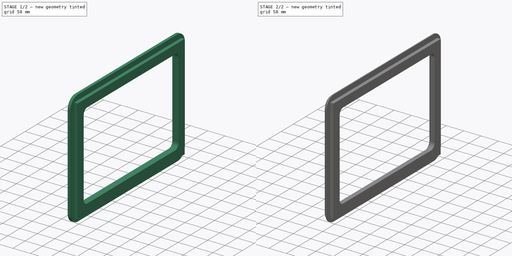
[diagram: build sequence overview — one tinted view per stage of 2, left to right]
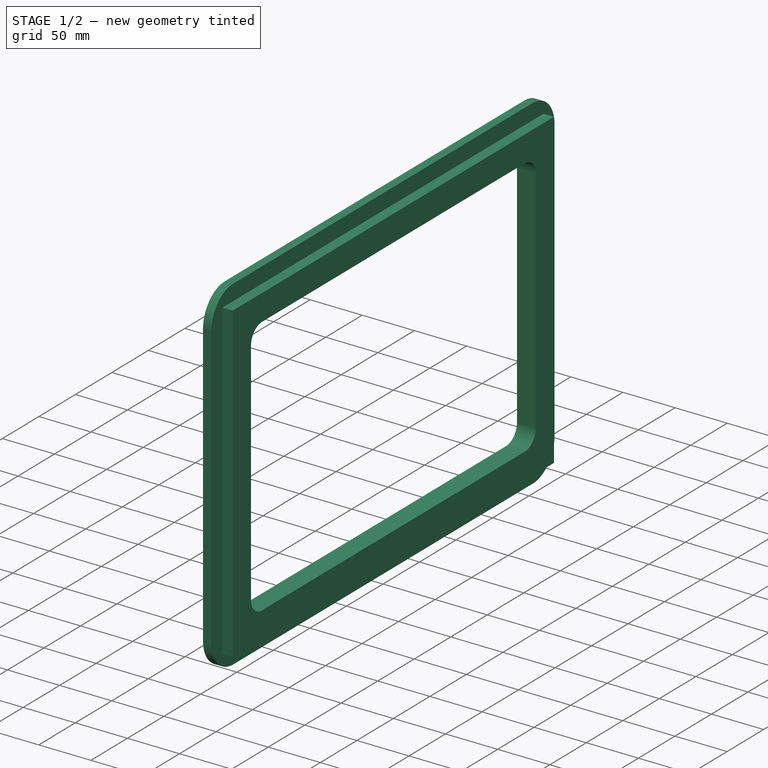
[diagram: stage 1 of 2 — iso view after this stage's code; geometry added in this stage tinted green]
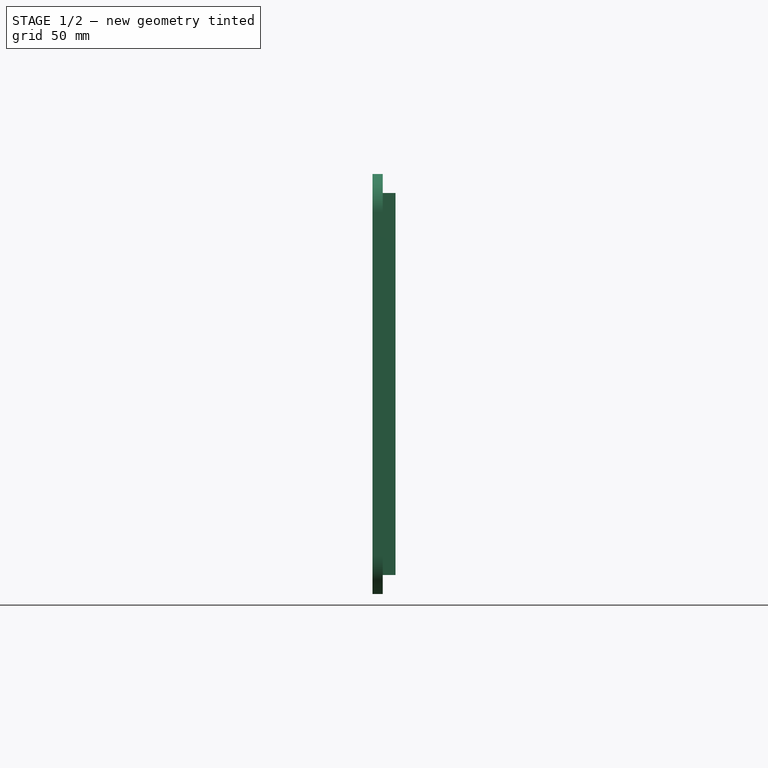
[diagram: stage 1 of 2 — front view after this stage's code; geometry added in this stage tinted green]
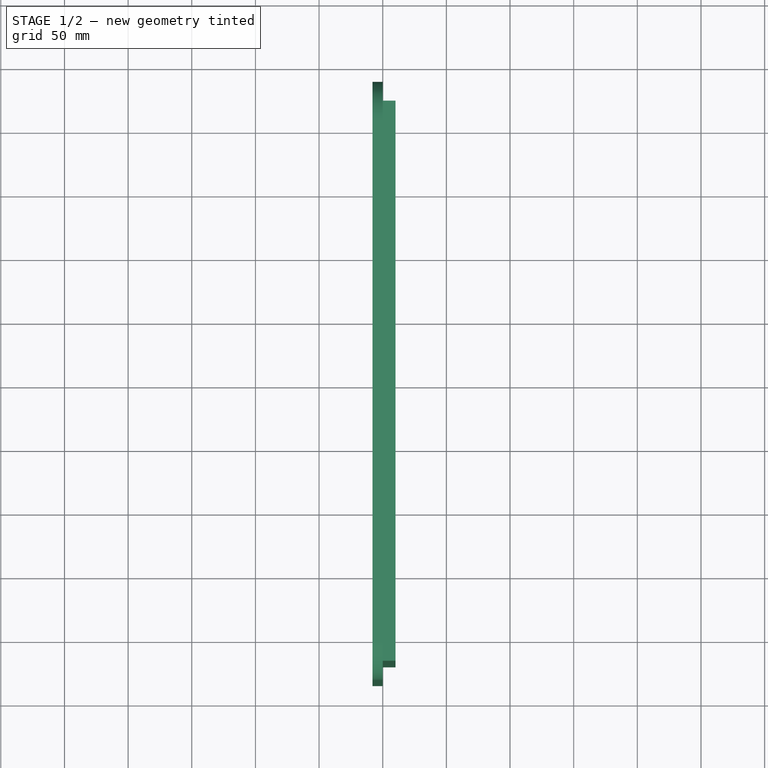
[diagram: stage 1 of 2 — top view after this stage's code; geometry added in this stage tinted green]
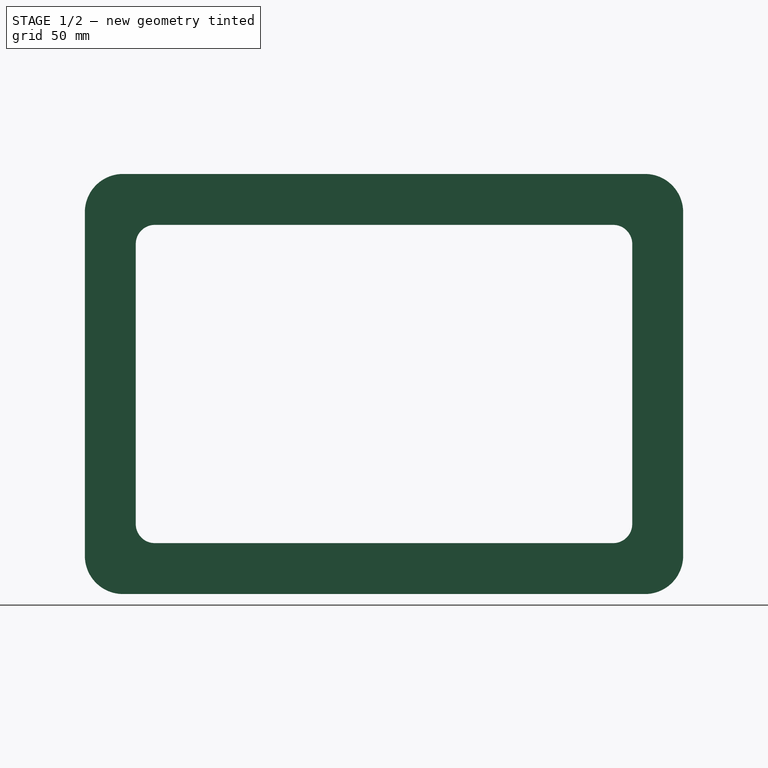
[diagram: stage 1 of 2 — right view after this stage's code; geometry added in this stage tinted green]
FCSTD DOCUMENT  (FreeCAD 0.20R29603 (Git))
Label: FensterRahmenInnen_440x300
License: All rights reserved
LicenseURL: http://en.wikipedia.org/wiki/All_rights_reserved
objects: Sketcher::SketchObject×2, PartDesign::Pad×2, PartDesign::Chamfer×1, PartDesign::Body×1
note: 9 computed .brp shape members not serialized (recipe doc carries the construction recipe); baked Part::Feature solids carry a one-line shape summary decoded from their .brp

FEATURE [Sketcher::SketchObject] Sketch
  FullyConstrained = true
  MapMode = 5
  Placement = pos=(0,0,0) rot=(0.57735,0.57735,0.57735;2.0944rad)
  Support = -> [YZ_Plane]
  sketch-geometry (18):
    g0: LineSegment StartX=-220 StartY=150 StartZ=0 EndX=-220 EndY=-150 EndZ=0
    g1: LineSegment StartX=-220 StartY=-150 StartZ=0 EndX=220 EndY=-150 EndZ=0
    g2: LineSegment StartX=220 StartY=-150 StartZ=0 EndX=220 EndY=150 EndZ=0
    g3: LineSegment StartX=220 StartY=150 StartZ=0 EndX=-220 EndY=150 EndZ=0
    g4: GeomPoint X=0 Y=0 Z=0
    g5: LineSegment StartX=-195 StartY=110 StartZ=0 EndX=-195 EndY=-110 EndZ=0
    g6: LineSegment StartX=-180 StartY=-125 StartZ=0 EndX=180 EndY=-125 EndZ=0
    g7: LineSegment StartX=195 StartY=-110 StartZ=0 EndX=195 EndY=110 EndZ=0
    g8: LineSegment StartX=180 StartY=125 StartZ=0 EndX=-180 EndY=125 EndZ=0
    g9: GeomPoint X=0 Y=0 Z=0
    g10: ArcOfCircle CenterX=180 CenterY=-110 CenterZ=0 NormalX=0 NormalY=0 NormalZ=1 AngleXU=0 Radius=15 StartAngle=4.71239 EndAngle=6.28319
    g11: GeomPoint X=195 Y=-125 Z=0
    g12: ArcOfCircle CenterX=180 CenterY=110 CenterZ=0 NormalX=0 NormalY=0 NormalZ=1 AngleXU=0 Radius=15 StartAngle=3.17e-14 EndAngle=1.5708
    g13: GeomPoint X=195 Y=125 Z=0
    g14: ArcOfCircle CenterX=-180 CenterY=110 CenterZ=0 NormalX=0 NormalY=0 NormalZ=1 AngleXU=0 Radius=15 StartAngle=1.5708 EndAngle=3.14159
    g15: GeomPoint X=-195 Y=125 Z=0
    g16: ArcOfCircle CenterX=-180 CenterY=-110 CenterZ=0 NormalX=0 NormalY=0 NormalZ=1 AngleXU=0 Radius=15 StartAngle=3.14159 EndAngle=4.71239
    g17: GeomPoint X=-195 Y=-125 Z=0
  constraints (40):
    c: Coincident(g0,g1)
    c: Coincident(g1,g2)
    c: Coincident(g2,g3)
    c: Coincident(g3,g0)
    c: Horizontal(g1)
    c: Horizontal(g3)
    c: Vertical(g0)
    c: Vertical(g2)
    c: Symmetric(g1,g0,g4)
    c: Coincident(g4,g-1)
    c: Distance(g3) = 440
    c: Distance(g0) = 300
    c: Horizontal(g6)
    c: Horizontal(g8)
    c: Vertical(g5)
    c: Vertical(g7)
    c: Symmetric(g11,g15,g9)
    c: Coincident(g9,g4)
    c: PointOnObject(g11,g6)
    c: PointOnObject(g11,g7)
    c: Tangent(g6,g10) = -1.5708
    c: Tangent(g7,g10) = -1.5708
    c: PointOnObject(g13,g7)
    c: PointOnObject(g13,g8)
    c: Tangent(g7,g12) = -1.5708
    c: Tangent(g8,g12) = -1.5708
    c: PointOnObject(g15,g5)
    c: PointOnObject(g15,g8)
    c: Tangent(g5,g14) = -1.5708
    c: Tangent(g8,g14) = -1.5708
    c: PointOnObject(g17,g5)
    c: PointOnObject(g17,g6)
    c: Tangent(g5,g16) = -1.5708
    c: Tangent(g6,g16) = -1.5708
    c: Equal(g12,g14)
    c: Equal(g14,g16)
    c: Equal(g16,g10)
    c: Radius(g12) = 15
    c: Distance(g7,g2) = 25
    c: Distance(g6,g1) = 25
FEATURE [PartDesign::Pad] Pad
  Direction = (1,-2e-16,3e-16)
  Length = 10
  Length2 = 10
  Placement = pos=(0,0,0) rot=(0.57735,0.57735,0.57735;2.0944rad)
  Profile = -> Sketch
  ReferenceAxis = -> Sketch [N_Axis]
  Type = 0
FEATURE [Sketcher::SketchObject] Sketch001
  ExternalGeometry = -> [Pad]
  FullyConstrained = true
  MapMode = 5
  Placement = pos=(0,0,0) rot=(0.57735,0.57735,-0.57735;4.18879rad)
  Support = -> [Pad]
  sketch-geometry (26):
    g0: LineSegment StartX=-235 StartY=135 StartZ=0 EndX=-235 EndY=-135 EndZ=0
    g1: LineSegment StartX=-205 StartY=-165 StartZ=0 EndX=205 EndY=-165 EndZ=0
    g2: LineSegment StartX=235 StartY=-135 StartZ=0 EndX=235 EndY=135 EndZ=0
    g3: LineSegment StartX=205 StartY=165 StartZ=0 EndX=-205 EndY=165 EndZ=0
    g4: GeomPoint X=0 Y=0 Z=0
    g5: ArcOfCircle CenterX=205 CenterY=-135 CenterZ=0 NormalX=0 NormalY=0 NormalZ=1 AngleXU=0 Radius=30 StartAngle=4.71239 EndAngle=6.28319
    g6: GeomPoint X=235 Y=-165 Z=0
    g7: ArcOfCircle CenterX=205 CenterY=135 CenterZ=0 NormalX=0 NormalY=0 NormalZ=1 AngleXU=0 Radius=30 StartAngle=1e-16 EndAngle=1.5708
    g8: GeomPoint X=235 Y=165 Z=0
    g9: ArcOfCircle CenterX=-205 CenterY=135 CenterZ=0 NormalX=0 NormalY=0 NormalZ=1 AngleXU=0 Radius=30 StartAngle=1.5708 EndAngle=3.14159
    g10: GeomPoint X=-235 Y=165 Z=0
    g11: ArcOfCircle CenterX=-205 CenterY=-135 CenterZ=0 NormalX=0 NormalY=0 NormalZ=1 AngleXU=0 Radius=30 StartAngle=3.14159 EndAngle=4.71239
    g12: GeomPoint X=-235 Y=-165 Z=0
    g13: LineSegment StartX=-195 StartY=110 StartZ=0 EndX=-195 EndY=-110 EndZ=0
    g14: LineSegment StartX=-180 StartY=-125 StartZ=0 EndX=180 EndY=-125 EndZ=0
    g15: LineSegment StartX=195 StartY=-110 StartZ=0 EndX=195 EndY=110 EndZ=0
    g16: LineSegment StartX=180 StartY=125 StartZ=0 EndX=-180 EndY=125 EndZ=0
    g17: GeomPoint X=0 Y=0 Z=0
    g18: ArcOfCircle CenterX=-180 CenterY=110 CenterZ=0 NormalX=0 NormalY=0 NormalZ=1 AngleXU=0 Radius=15 StartAngle=1.5708 EndAngle=3.14159
    g19: GeomPoint X=-195 Y=125 Z=0
    g20: ArcOfCircle CenterX=180 CenterY=110 CenterZ=0 NormalX=0 NormalY=0 NormalZ=1 AngleXU=0 Radius=15 StartAngle=1.4e-14 EndAngle=1.5708
    g21: GeomPoint X=195 Y=125 Z=0
    g22: ArcOfCircle CenterX=180 CenterY=-110 CenterZ=0 NormalX=0 NormalY=0 NormalZ=1 AngleXU=0 Radius=15 StartAngle=4.71239 EndAngle=6.28319
    g23: GeomPoint X=195 Y=-125 Z=0
    g24: ArcOfCircle CenterX=-180 CenterY=-110 CenterZ=0 NormalX=0 NormalY=0 NormalZ=1 AngleXU=0 Radius=15 StartAngle=3.14159 EndAngle=4.71239
    g25: GeomPoint X=-195 Y=-125 Z=0
  constraints (54):
    c: Horizontal(g1)
    c: Horizontal(g3)
    c: Vertical(g0)
    c: Vertical(g2)
    c: Symmetric(g6,g10,g4)
    c: Coincident(g4,g-1)
    c: PointOnObject(g6,g1)
    c: PointOnObject(g6,g2)
    c: Tangent(g1,g5) = -1.5708
    c: Tangent(g2,g5) = -1.5708
    c: PointOnObject(g8,g2)
    c: PointOnObject(g8,g3)
    c: Tangent(g2,g7) = -1.5708
    c: Tangent(g3,g7) = -1.5708
    c: PointOnObject(g10,g0)
    c: PointOnObject(g10,g3)
    c: Tangent(g0,g9) = -1.5708
    c: Tangent(g3,g9) = -1.5708
    c: PointOnObject(g12,g0)
    c: PointOnObject(g12,g1)
    c: Tangent(g0,g11) = -1.5708
    c: Tangent(g1,g11) = -1.5708
    c: Equal(g11,g9)
    c: Equal(g9,g7)
    c: Equal(g7,g5)
    c: Radius(g7) = 30
    c: Distance(g0,g-3) = 40
    c: Distance(g1,g-4) = 40
    c: Horizontal(g16)
    c: Vertical(g15)
    c: Symmetric(g23,g19,g17)
    c: Coincident(g17,g4)
    c: PointOnObject(g19,g13)
    c: PointOnObject(g19,g16)
    c: Tangent(g13,g18) = -1.5708
    c: Tangent(g16,g18) = -1.5708
    c: PointOnObject(g21,g15)
    c: PointOnObject(g21,g16)
    c: Tangent(g15,g20) = -1.5708
    c: Tangent(g16,g20) = -1.5708
    c: PointOnObject(g23,g14)
    c: PointOnObject(g23,g15)
    c: Tangent(g14,g22) = -1.5708
    c: Tangent(g15,g22) = -1.5708
    c: PointOnObject(g25,g13)
    c: PointOnObject(g25,g14)
    c: Tangent(g13,g24) = -1.5708
    c: Tangent(g14,g24) = -1.5708
    c: Equal(g24,g18)
    c: Equal(g18,g20)
    c: Equal(g20,g22)
    c: Radius(g20) = 15
    c: Tangent(g-3,g13)
    c: Tangent(g14,g-4)
FEATURE [PartDesign::Pad] Pad001
  BaseFeature = -> Pad
  Direction = (-1,4e-16,-4e-16)
  Length = 8
  Length2 = 10
  Placement = pos=(0,0,0) rot=(0.57735,0.57735,0.57735;2.0944rad)
  Profile = -> Sketch001
  ReferenceAxis = -> Sketch001 [N_Axis]
  Type = 0
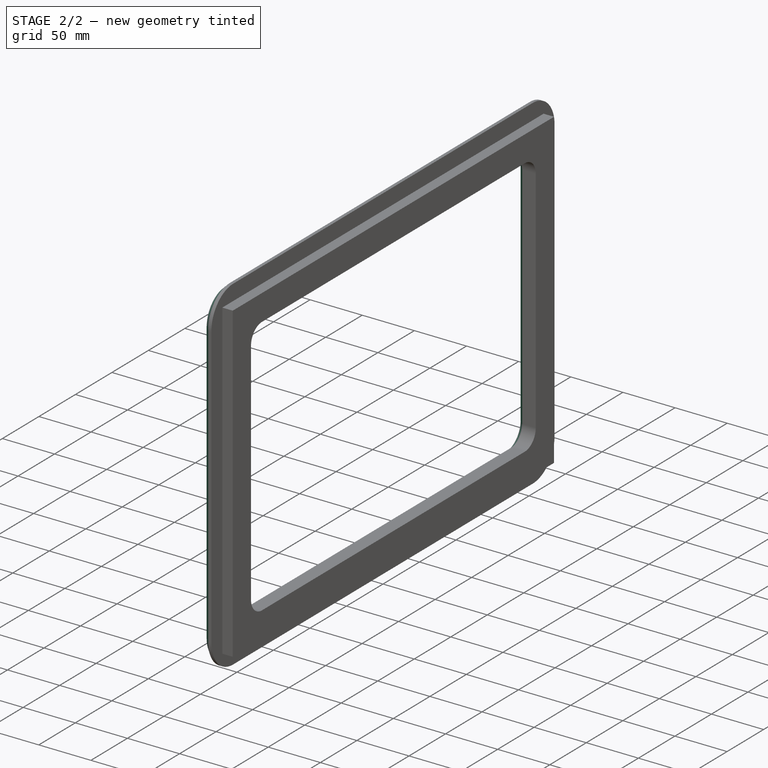
[diagram: stage 2 of 2 — iso view after this stage's code; geometry added in this stage tinted green]
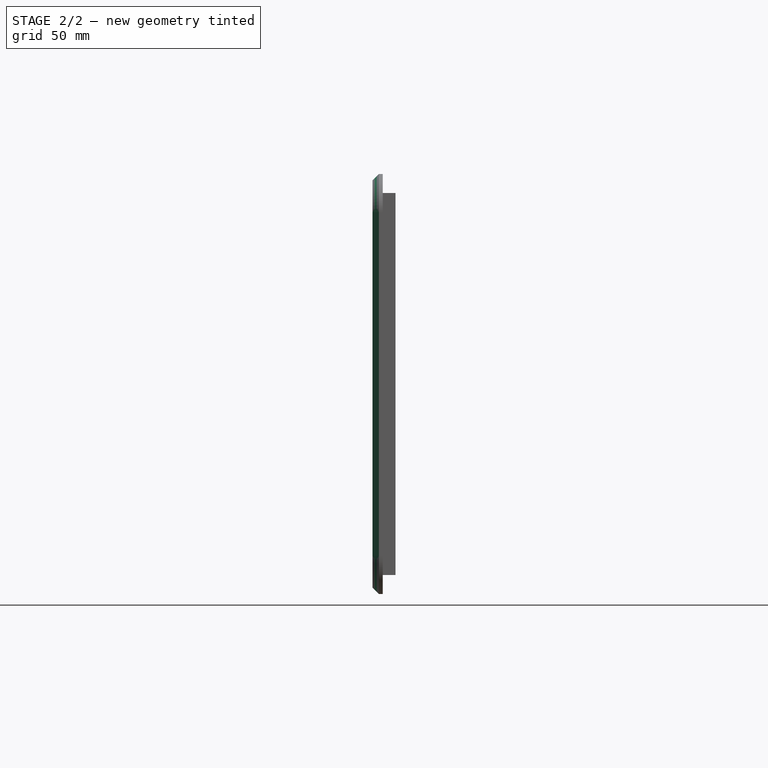
[diagram: stage 2 of 2 — front view after this stage's code; geometry added in this stage tinted green]
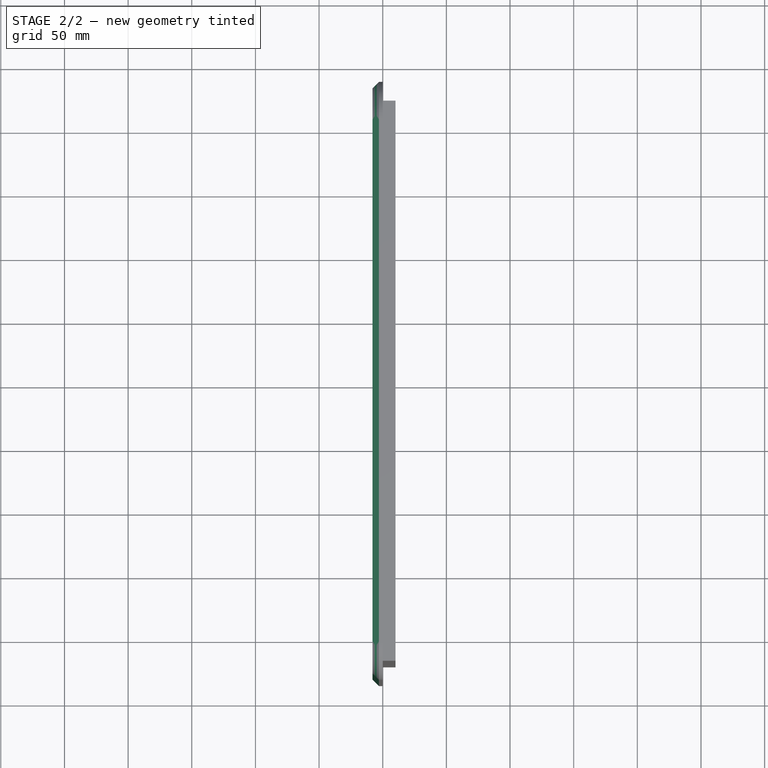
[diagram: stage 2 of 2 — top view after this stage's code; geometry added in this stage tinted green]
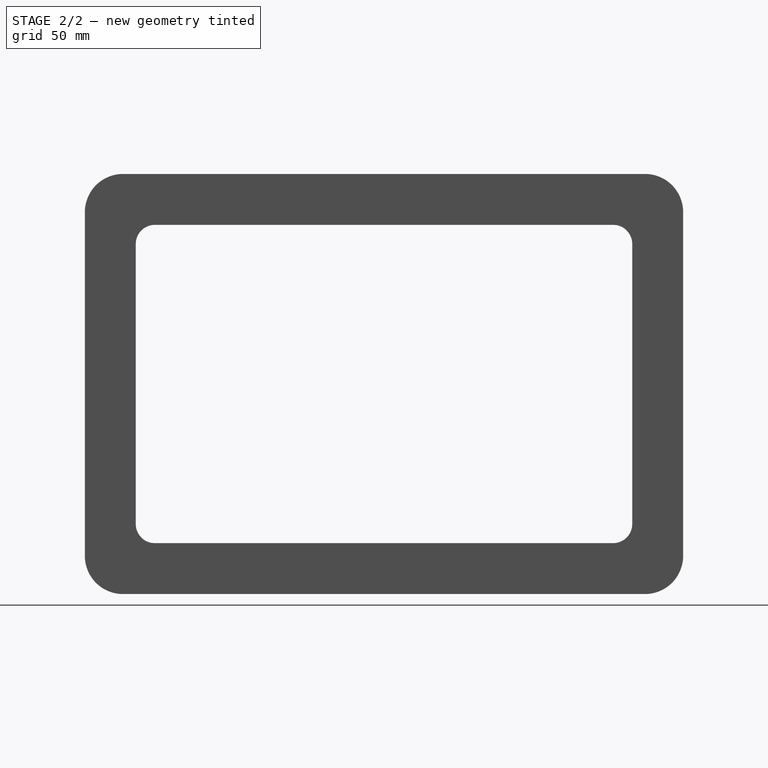
[diagram: stage 2 of 2 — right view after this stage's code; geometry added in this stage tinted green]
FEATURE [PartDesign::Chamfer] Chamfer
  Angle = 45
  Base = -> Pad001 [Face23]
  BaseFeature = -> Pad001
  ChamferType = 0
  FlipDirection = false
  Placement = pos=(0,0,0) rot=(0.57735,0.57735,0.57735;2.0944rad)
  Size = 5
  Size2 = 1
  SupportTransform = false
  UseAllEdges = false
FEATURE [PartDesign::Body] Body
  Group = -> [Sketch,Pad,Sketch001,Pad001,Chamfer]
  Origin = -> Origin
  Tip = -> Chamfer
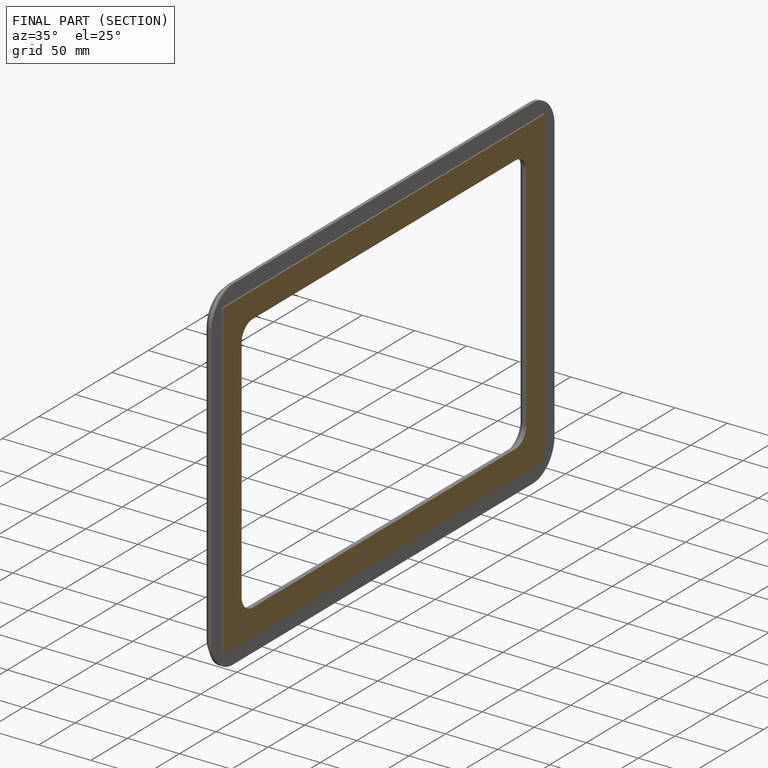
[diagram: finished part — half-section view (interior)]
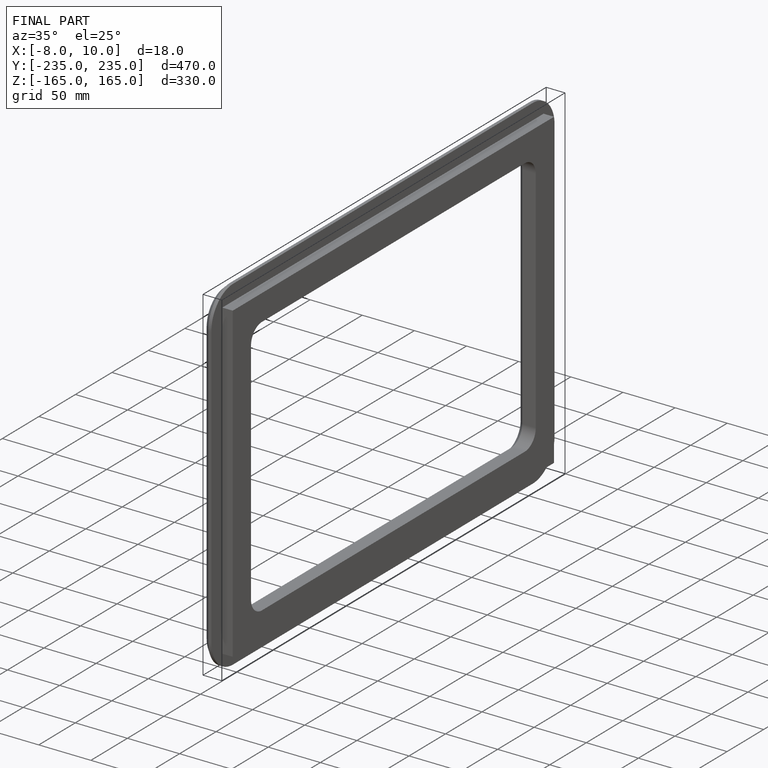
[diagram: finished part — iso view with bounding-box wireframe]
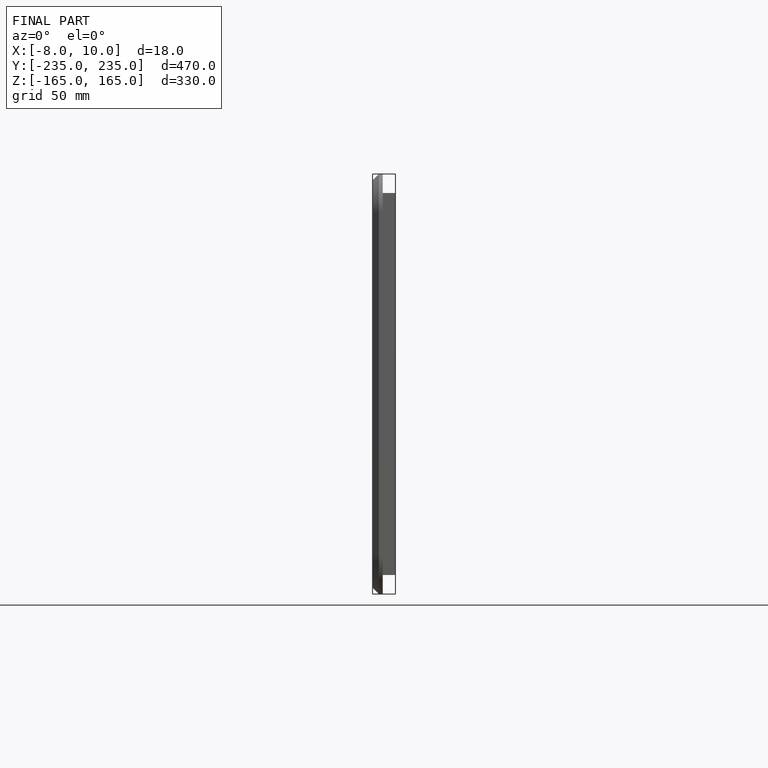
[diagram: finished part — front view with bounding-box wireframe]
